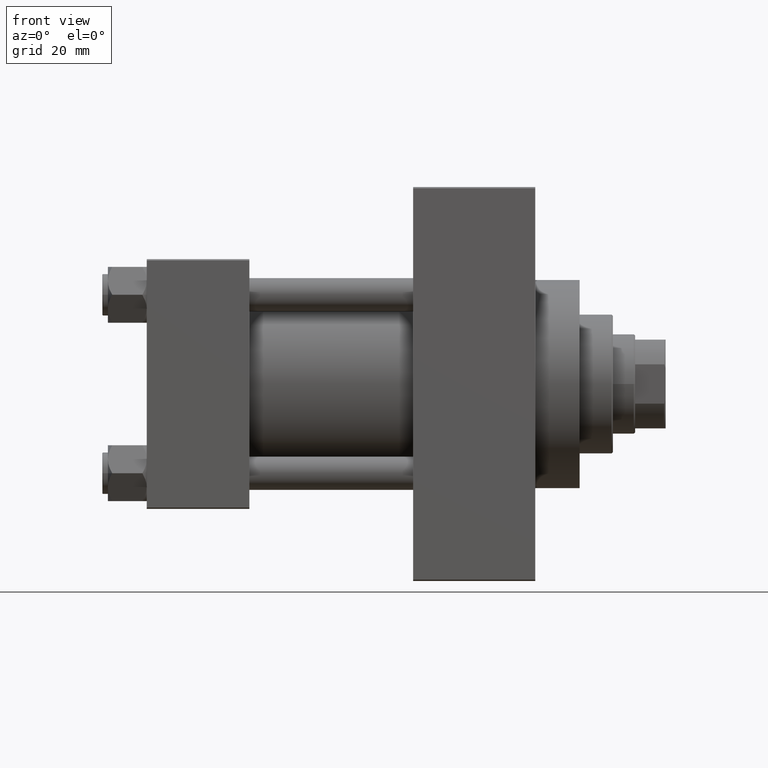
[diagram: clean part render]
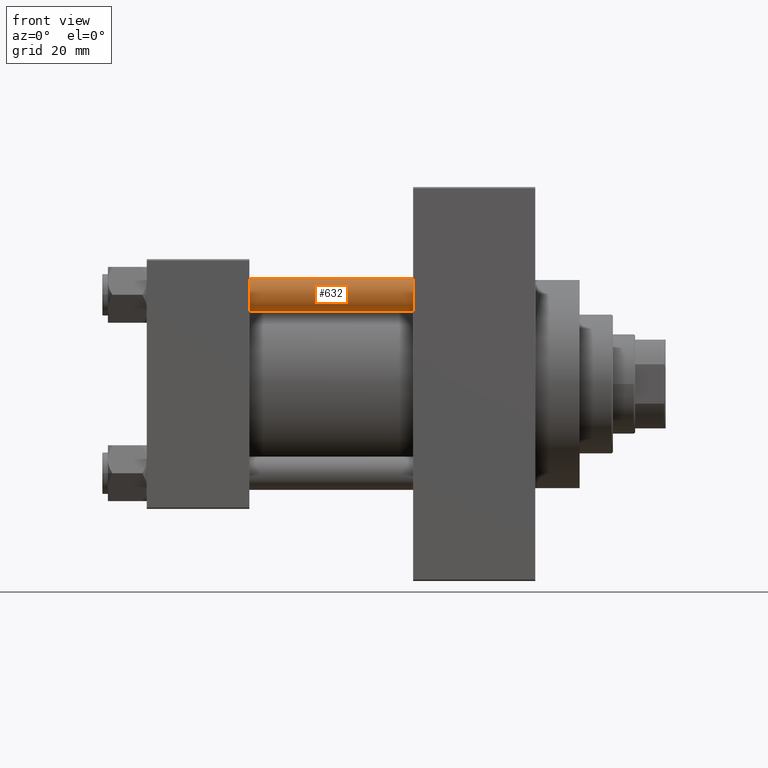
[diagram: same view with one face highlighted and labeled with its STEP entity id]
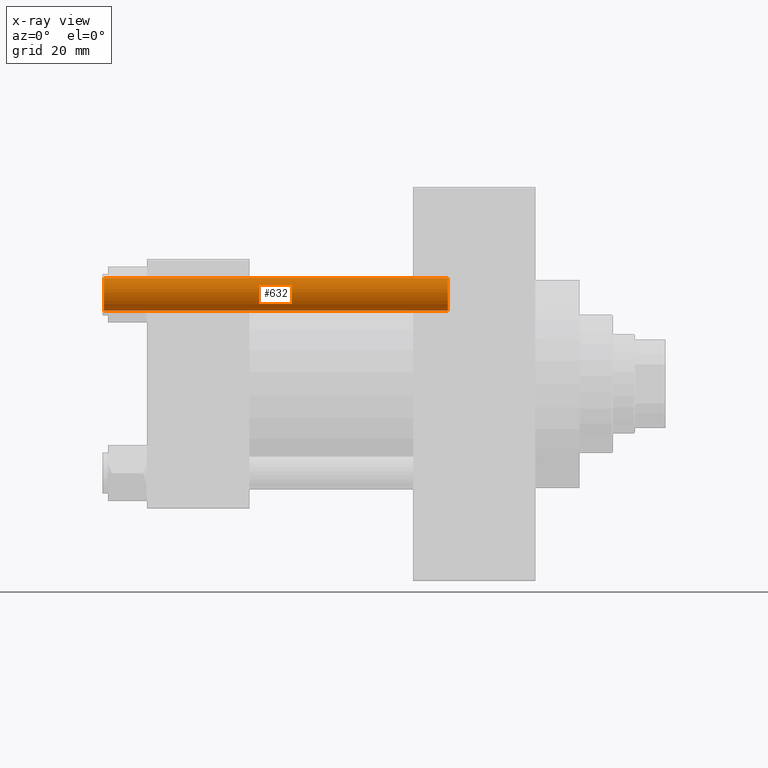
[diagram: x-ray of the same camera — body ghosted, the highlighted face saturated]
A machine part, front view. The second image highlights one B-rep face of the part: STEP entity #632.
The next image is the same camera in x-ray: the body ghosted, the highlighted face saturated — about 0% of this face is hidden behind the body in this view.
In plain terms, the highlighted cylindrical surface (edge-blend (fillet) strip) has radius 6 mm, axis along (1, 0, 0).
Its self-contained STEP definition (entity closure, byte-faithful):
#632 = ADVANCED_FACE ( 'NONE', ( #38936 ), #38481, .T. ) ;
#1215 = DIRECTION ( 'NONE',  ( 1.000000000000000000, 0.000000000000000000, 0.000000000000000000 ) ) ;
#1819 = EDGE_LOOP ( 'NONE', ( #20568, #42225, #42469, #19090 ) ) ;
#2642 = DIRECTION ( 'NONE',  ( -0.000000000000000000, -0.000000000000000000, -1.000000000000000000 ) ) ;
#3076 = CARTESIAN_POINT ( 'NONE',  ( 0.000000000000000000, 0.000000000000000000, 124.5000000000000000 ) ) ;
#4616 = VERTEX_POINT ( 'NONE', #7969 ) ;
#4630 = CARTESIAN_POINT ( 'NONE',  ( 6.000000000000000888, 7.347880794884120722E-16, 0.4999999999999865663 ) ) ;
#7919 = CARTESIAN_POINT ( 'NONE',  ( 0.000000000000000000, 0.000000000000000000, 0.4999999999999865663 ) ) ;
#7969 = CARTESIAN_POINT ( 'NONE',  ( -6.000000000000000888, 0.000000000000000000, 124.5000000000000000 ) ) ;
#9591 = DIRECTION ( 'NONE',  ( -1.000000000000000000, 0.000000000000000000, 0.000000000000000000 ) ) ;
#10949 = DIRECTION ( 'NONE',  ( 0.000000000000000000, 0.000000000000000000, -1.000000000000000000 ) ) ;
#11791 = VECTOR ( 'NONE', #2642, 1000.000000000000000 ) ;
#12117 = CARTESIAN_POINT ( 'NONE',  ( -6.000000000000000888, 0.000000000000000000, 0.4999999999999865663 ) ) ;
#13119 = LINE ( 'NONE', #27690, #36109 ) ;
#19090 = ORIENTED_EDGE ( 'NONE', *, *, #25406, .F. ) ;
#20568 = ORIENTED_EDGE ( 'NONE', *, *, #26440, .T. ) ;
#21470 = DIRECTION ( 'NONE',  ( 1.000000000000000000, 0.000000000000000000, 0.000000000000000000 ) ) ;
#22428 = CIRCLE ( 'NONE', #44542, 6.000000000000000888 ) ;
#25406 = EDGE_CURVE ( 'NONE', #4616, #34376, #13119, .T. ) ;
#26243 = EDGE_CURVE ( 'NONE', #41573, #34376, #27728, .T. ) ;
#26440 = EDGE_CURVE ( 'NONE', #4616, #40568, #22428, .T. ) ;
#27690 = CARTESIAN_POINT ( 'NONE',  ( -6.000000000000000888, 0.000000000000000000, 125.0000000000000000 ) ) ;
#27727 = CARTESIAN_POINT ( 'NONE',  ( 0.000000000000000000, 0.000000000000000000, 125.0000000000000000 ) ) ;
#27728 = CIRCLE ( 'NONE', #33823, 6.000000000000000888 ) ;
#28148 = DIRECTION ( 'NONE',  ( -0.000000000000000000, -0.000000000000000000, -1.000000000000000000 ) ) ;
#31912 = AXIS2_PLACEMENT_3D ( 'NONE', #27727, #42299, #9591 ) ;
#32038 = CARTESIAN_POINT ( 'NONE',  ( 6.000000000000000888, 7.347880794884120722E-16, 124.5000000000000000 ) ) ;
#33823 = AXIS2_PLACEMENT_3D ( 'NONE', #7919, #33914, #1215 ) ;
#33914 = DIRECTION ( 'NONE',  ( -0.000000000000000000, -0.000000000000000000, 1.000000000000000000 ) ) ;
#34376 = VERTEX_POINT ( 'NONE', #12117 ) ;
#36060 = CARTESIAN_POINT ( 'NONE',  ( 6.000000000000000888, 7.347880794884120722E-16, 125.0000000000000000 ) ) ;
#36109 = VECTOR ( 'NONE', #28148, 1000.000000000000000 ) ;
#38481 = CYLINDRICAL_SURFACE ( 'NONE', #31912, 6.000000000000000888 ) ;
#38936 = FACE_OUTER_BOUND ( 'NONE', #1819, .T. ) ;
#39412 = LINE ( 'NONE', #36060, #11791 ) ;
#40568 = VERTEX_POINT ( 'NONE', #32038 ) ;
#41573 = VERTEX_POINT ( 'NONE', #4630 ) ;
#42225 = ORIENTED_EDGE ( 'NONE', *, *, #43905, .T. ) ;
#42299 = DIRECTION ( 'NONE',  ( -0.000000000000000000, -0.000000000000000000, -1.000000000000000000 ) ) ;
#42469 = ORIENTED_EDGE ( 'NONE', *, *, #26243, .T. ) ;
#43905 = EDGE_CURVE ( 'NONE', #40568, #41573, #39412, .T. ) ;
#44542 = AXIS2_PLACEMENT_3D ( 'NONE', #3076, #10949, #21470 ) ;